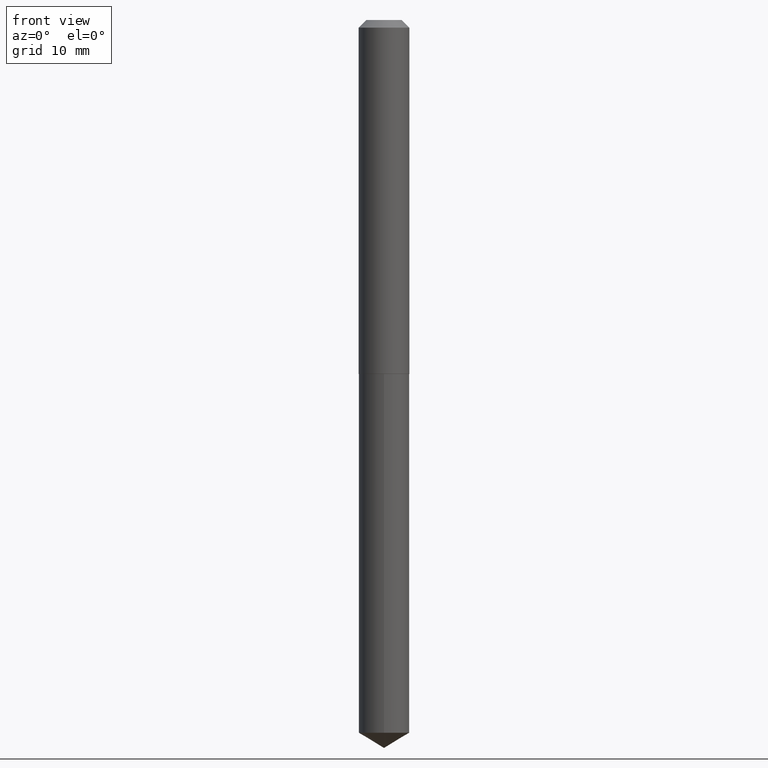
[diagram: clean part render]
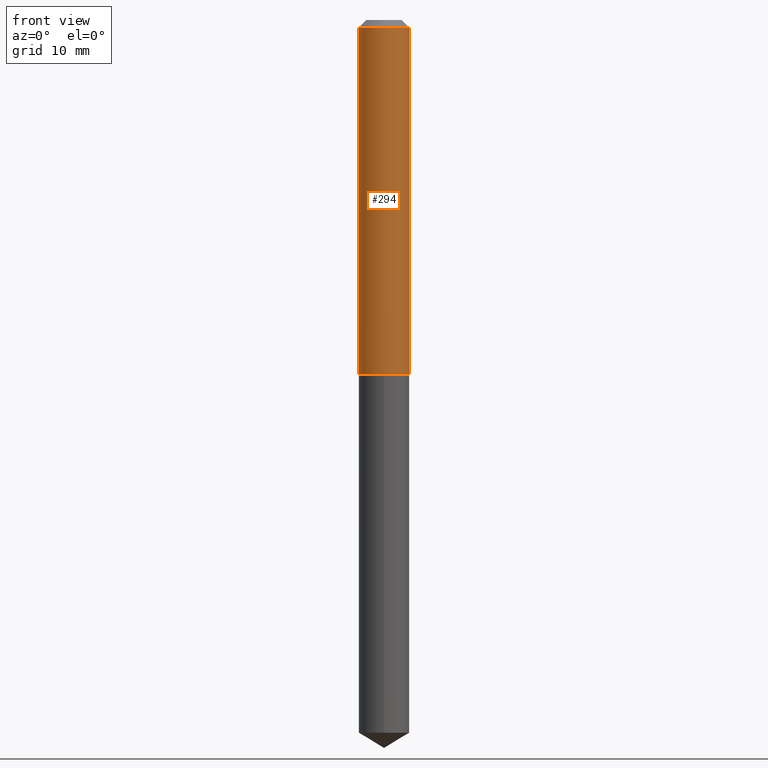
[diagram: same view with one face highlighted and labeled with its STEP entity id]
A machine part, front view. The second image highlights one B-rep face of the part: STEP entity #294.
In plain terms, the highlighted cylindrical surface (edge-blend (fillet) strip) has radius 2.6543 mm, axis along (-0, 0, 1).
Its self-contained STEP definition (entity closure, byte-faithful):
#26 = DIRECTION ( 'NONE',  ( -2.445468806185136877E-29, 3.491481338843145188E-15, 1.000000000000000000 ) ) ;
#31 = DIRECTION ( 'NONE',  ( -2.445468806185136597E-29, 3.491481338843145583E-15, 1.000000000000000000 ) ) ;
#33 = CARTESIAN_POINT ( 'NONE',  ( 0.1045000000000000789, -7.297195998182153130E-16, 5.095604730706756323E-30 ) ) ;
#36 = DIRECTION ( 'NONE',  ( -2.445468806185136597E-29, 3.491481338843145583E-15, 1.000000000000000000 ) ) ;
#39 = VERTEX_POINT ( 'NONE', #78 ) ;
#42 = ORIENTED_EDGE ( 'NONE', *, *, #119, .T. ) ;
#52 = EDGE_LOOP ( 'NONE', ( #296, #384, #42, #142 ) ) ;
#64 = CARTESIAN_POINT ( 'NONE',  ( -0.1045000000000001622, -4.349808373833422899E-15, -1.458500000000000352 ) ) ;
#65 = DIRECTION ( 'NONE',  ( 1.000000000000000000, -6.982962677686265922E-15, 4.876176775795935232E-29 ) ) ;
#68 = VECTOR ( 'NONE', #26, 39.37007874015748143 ) ;
#75 = AXIS2_PLACEMENT_3D ( 'NONE', #306, #257, #93 ) ;
#78 = CARTESIAN_POINT ( 'NONE',  ( 0.1045000000000001622, -5.822045132520943960E-15, -1.458500000000000352 ) ) ;
#79 = VECTOR ( 'NONE', #188, 39.37007874015748143 ) ;
#93 = DIRECTION ( 'NONE',  ( 1.000000000000000000, -6.982962677686261977E-15, 0.000000000000000000 ) ) ;
#119 = EDGE_CURVE ( 'NONE', #39, #220, #308, .T. ) ;
#120 = CIRCLE ( 'NONE', #75, 0.1045000000000001622 ) ;
#142 = ORIENTED_EDGE ( 'NONE', *, *, #341, .F. ) ;
#156 = DIRECTION ( 'NONE',  ( 1.000000000000000000, -6.982962677686266711E-15, 0.000000000000000000 ) ) ;
#188 = DIRECTION ( 'NONE',  ( -2.445468806185136877E-29, 3.491481338843145188E-15, 1.000000000000000000 ) ) ;
#207 = CARTESIAN_POINT ( 'NONE',  ( 0.1044999999999999818, -8.388283916570637234E-16, -0.03125000000000019429 ) ) ;
#217 = CARTESIAN_POINT ( 'NONE',  ( 0.000000000000000000, 0.000000000000000000, 0.000000000000000000 ) ) ;
#220 = VERTEX_POINT ( 'NONE', #207 ) ;
#240 = AXIS2_PLACEMENT_3D ( 'NONE', #217, #36, #65 ) ;
#257 = DIRECTION ( 'NONE',  ( -2.445468806185136597E-29, 3.491481338843145583E-15, 1.000000000000000000 ) ) ;
#262 = VERTEX_POINT ( 'NONE', #282 ) ;
#282 = CARTESIAN_POINT ( 'NONE',  ( -0.1044999999999999818, -1.858200003401482731E-15, -0.03125000000000019429 ) ) ;
#286 = FACE_OUTER_BOUND ( 'NONE', #52, .T. ) ;
#290 = EDGE_CURVE ( 'NONE', #292, #262, #372, .T. ) ;
#292 = VERTEX_POINT ( 'NONE', #64 ) ;
#294 = ADVANCED_FACE ( 'NONE', ( #286 ), #316, .T. ) ;
#296 = ORIENTED_EDGE ( 'NONE', *, *, #290, .F. ) ;
#306 = CARTESIAN_POINT ( 'NONE',  ( 3.566716253821021991E-29, -5.092325532702728647E-15, -1.458500000000000352 ) ) ;
#308 = LINE ( 'NONE', #33, #68 ) ;
#315 = CARTESIAN_POINT ( 'NONE',  ( 7.642090019328598283E-31, -1.091087918388489651E-16, -0.03125000000000019429 ) ) ;
#316 = CYLINDRICAL_SURFACE ( 'NONE', #240, 0.1045000000000000789 ) ;
#317 = EDGE_CURVE ( 'NONE', #292, #39, #120, .T. ) ;
#341 = EDGE_CURVE ( 'NONE', #262, #220, #358, .T. ) ;
#358 = CIRCLE ( 'NONE', #385, 0.1044999999999999818 ) ;
#372 = LINE ( 'NONE', #380, #79 ) ;
#380 = CARTESIAN_POINT ( 'NONE',  ( -0.1045000000000000789, 7.425171588693052551E-16, -5.140287169316379936E-30 ) ) ;
#384 = ORIENTED_EDGE ( 'NONE', *, *, #317, .T. ) ;
#385 = AXIS2_PLACEMENT_3D ( 'NONE', #315, #31, #156 ) ;